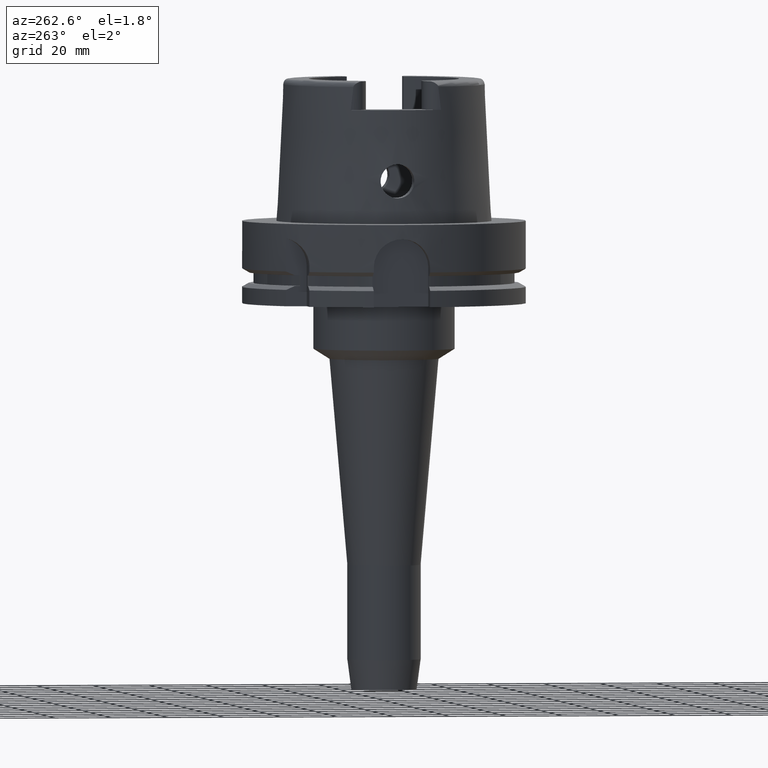
[diagram: clean part render]
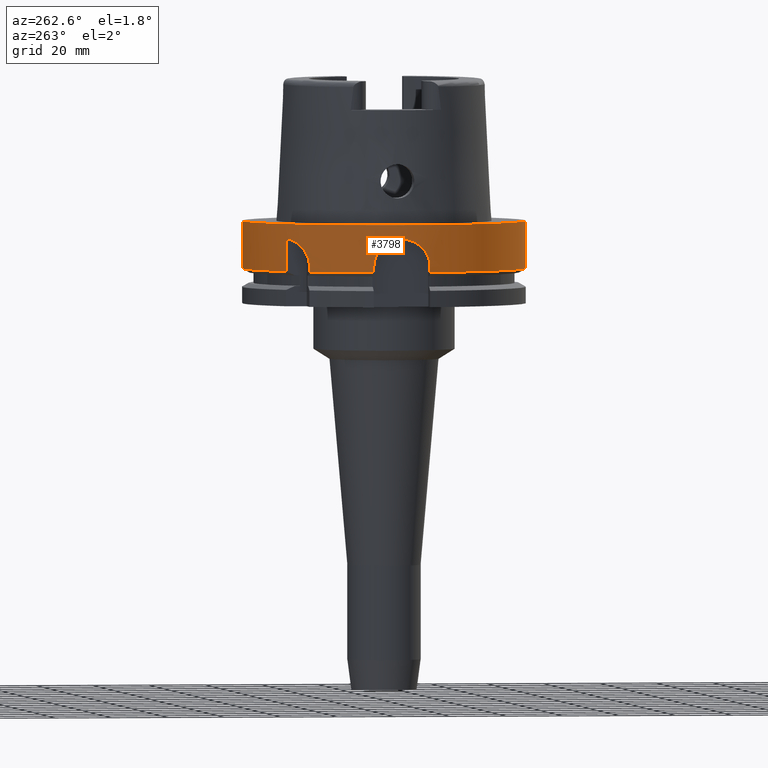
[diagram: same view with one face highlighted and labeled with its STEP entity id]
A machine part, auxiliary view. The second image highlights one B-rep face of the part: STEP entity #3798.
In plain terms, the highlighted cylindrical surface (partial cylindrical patch) has radius 50 mm, axis along (0, 0, 1).
Its self-contained STEP definition (entity closure, byte-faithful):
#1321=CARTESIAN_POINT('',(-3.150000355959E1,3.882975374305E1,
-1.675239179145E1));
#1506=CARTESIAN_POINT('',(-3.882975730068E1,3.149999917413E1,
-1.675240773890E1));
#1530=DIRECTION('',(-3.028823767049E-7,-2.457085509676E-7,-9.999999999999E-1));
#1531=VECTOR('',#1530,1.175239179145E1);
#1532=CARTESIAN_POINT('',(-3.15E1,3.882975663071E1,-5.000000000003E0));
#1533=LINE('',#1532,#1531);
#1537=DIRECTION('',(0.E0,2.969006079282E-14,-1.E0));
#1538=VECTOR('',#1537,1.675240473581E1);
#1539=CARTESIAN_POINT('',(0.E0,-5.E1,0.E0));
#1540=LINE('',#1539,#1538);
#1544=DIRECTION('',(3.933032361779E-13,-2.534170336198E-14,1.E0));
#1545=VECTOR('',#1544,1.752404735809E0);
#1546=CARTESIAN_POINT('',(-4.898979485566E1,-1.E1,-1.675240473581E1));
#1547=LINE('',#1546,#1545);
#1551=DIRECTION('',(-4.014125812538E-13,-2.635537149646E-14,-1.E0));
#1552=VECTOR('',#1551,1.752404735809E0);
#1553=CARTESIAN_POINT('',(-4.898979485566E1,1.E1,-1.5E1));
#1554=LINE('',#1553,#1552);
#1558=DIRECTION('',(3.166955095345E-7,3.903884141555E-7,9.999999999999E-1));
#1559=VECTOR('',#1558,2.115509879686E0);
#1560=CARTESIAN_POINT('',(-3.882975730068E1,3.149999917413E1,
-1.675240773890E1));
#1561=LINE('',#1560,#1559);
#1565=CARTESIAN_POINT('',(-3.882975663071E1,3.15E1,-1.463689785921E1));
#1566=CARTESIAN_POINT('',(-3.882975663071E1,3.15E1,-1.430494203698E1));
#1567=CARTESIAN_POINT('',(-3.880306412820E1,3.153294538066E1,
-1.364359485381E1));
#1568=CARTESIAN_POINT('',(-3.868263107947E1,3.168082897827E1,
-1.265749929515E1));
#1569=CARTESIAN_POINT('',(-3.847871746533E1,3.192862218983E1,
-1.168263312617E1));
#1570=CARTESIAN_POINT('',(-3.818855617738E1,3.227574382322E1,
-1.073045114631E1));
#1571=CARTESIAN_POINT('',(-3.780497391116E1,3.272503593917E1,
-9.803909292814E0));
#1572=CARTESIAN_POINT('',(-3.732221476838E1,3.327564544412E1,
-8.915695620927E0));
#1573=CARTESIAN_POINT('',(-3.672712704925E1,3.393268326905E1,
-8.069829316823E0));
#1574=CARTESIAN_POINT('',(-3.601008097667E1,3.469435363096E1,
-7.282043895688E0));
#1575=CARTESIAN_POINT('',(-3.515384342932E1,3.556374749500E1,
-6.562284648330E0));
#1576=CARTESIAN_POINT('',(-3.413836408810E1,3.654213793436E1,
-5.925495247568E0));
#1577=CARTESIAN_POINT('',(-3.294305687959E1,3.762638310863E1,
-5.390156036175E0));
#1578=CARTESIAN_POINT('',(-3.200582486649E1,3.841941454575E1,
-5.113699786751E0));
#1579=CARTESIAN_POINT('',(-3.15E1,3.882975663071E1,-5.000000000003E0));
#1602=CARTESIAN_POINT('',(0.E0,0.E0,-1.675240473581E1));
#1603=DIRECTION('',(0.E0,0.E0,1.E0));
#1604=DIRECTION('',(0.E0,1.E0,0.E0));
#1605=AXIS2_PLACEMENT_3D('',#1602,#1603,#1604);
#1759=DIRECTION('',(0.E0,-2.969006079282E-14,-1.E0));
#1760=VECTOR('',#1759,1.675240473581E1);
#1761=CARTESIAN_POINT('',(0.E0,5.E1,0.E0));
#1762=LINE('',#1761,#1760);
#1833=CARTESIAN_POINT('',(0.E0,0.E0,-1.675240473581E1));
#1834=DIRECTION('',(0.E0,0.E0,1.E0));
#1835=DIRECTION('',(-9.797958971133E-1,-2.E-1,0.E0));
#1836=AXIS2_PLACEMENT_3D('',#1833,#1834,#1835);
#1987=CARTESIAN_POINT('',(0.E0,0.E0,0.E0));
#1988=DIRECTION('',(0.E0,0.E0,-1.E0));
#1989=DIRECTION('',(0.E0,-1.E0,0.E0));
#1990=AXIS2_PLACEMENT_3D('',#1987,#1988,#1989);
#2019=CARTESIAN_POINT('',(-4.898979485566E1,1.E1,-1.5E1));
#2020=CARTESIAN_POINT('',(-4.898979485566E1,1.E1,-1.426108284637E1));
#2021=CARTESIAN_POINT('',(-4.902380456868E1,9.835572764977E0,
-1.277773658279E1));
#2022=CARTESIAN_POINT('',(-4.916882651731E1,9.096391268500E0,
-1.064602814331E1));
#2023=CARTESIAN_POINT('',(-4.938004788442E1,7.892535509706E0,
-8.720775268654E0));
#2024=CARTESIAN_POINT('',(-4.961473114028E1,6.281191298759E0,
-7.108976366623E0));
#2025=CARTESIAN_POINT('',(-4.982397815719E1,4.355984042858E0,
-5.904661559561E0));
#2026=CARTESIAN_POINT('',(-4.996651881395E1,2.226272320059E0,
-5.165423083157E0));
#2027=CARTESIAN_POINT('',(-5.001677317055E1,-1.483085560210E-3,
-4.917124793461E0));
#2028=CARTESIAN_POINT('',(-4.996638839141E1,-2.229127825654E0,
-5.166078386550E0));
#2029=CARTESIAN_POINT('',(-4.982374943043E1,-4.358568822511E0,
-5.905888936282E0));
#2030=CARTESIAN_POINT('',(-4.961443237380E1,-6.283537316648E0,
-7.110862338249E0));
#2031=CARTESIAN_POINT('',(-4.937976412220E1,-7.894256710523E0,
-8.722907499253E0));
#2032=CARTESIAN_POINT('',(-4.916857099890E1,-9.097830034699E0,
-1.064902423136E1));
#2033=CARTESIAN_POINT('',(-4.902369954882E1,-9.835972787093E0,
-1.278007155795E1));
#2034=CARTESIAN_POINT('',(-4.898979485566E1,-1.E1,-1.426200631868E1));
#2035=CARTESIAN_POINT('',(-4.898979485566E1,-1.E1,-1.5E1));
#2054=CARTESIAN_POINT('',(0.E0,0.E0,-1.675240473581E1));
#2055=DIRECTION('',(0.E0,0.E0,1.E0));
#2056=DIRECTION('',(-7.765951326142E-1,6.3E-1,0.E0));
#2057=AXIS2_PLACEMENT_3D('',#2054,#2055,#2056);
#2062=CARTESIAN_POINT('',(-4.898979485566E1,1.E1,-1.675240473581E1));
#2464=VERTEX_POINT('',#1321);
#2465=CARTESIAN_POINT('',(-3.15E1,3.882975663071E1,-5.000000000003E0));
#2466=VERTEX_POINT('',#2465);
#2485=CARTESIAN_POINT('',(-4.898979485566E1,-1.E1,-1.5E1));
#2486=VERTEX_POINT('',#2485);
#2487=CARTESIAN_POINT('',(-4.898979485566E1,-1.E1,-1.675240473581E1));
#2488=VERTEX_POINT('',#2487);
#2507=VERTEX_POINT('',#2062);
#2508=CARTESIAN_POINT('',(-4.898979485566E1,1.E1,-1.5E1));
#2509=VERTEX_POINT('',#2508);
#2548=CARTESIAN_POINT('',(0.E0,-5.E1,-1.675240473581E1));
#2549=VERTEX_POINT('',#2548);
#2553=CARTESIAN_POINT('',(0.E0,5.E1,-1.675240473581E1));
#2554=VERTEX_POINT('',#2553);
#2555=VERTEX_POINT('',#1506);
#2556=CARTESIAN_POINT('',(0.E0,5.E1,0.E0));
#2557=VERTEX_POINT('',#2556);
#2558=CARTESIAN_POINT('',(0.E0,-5.E1,0.E0));
#2559=VERTEX_POINT('',#2558);
#2560=CARTESIAN_POINT('',(-3.882975663071E1,3.15E1,-1.463689785921E1));
#2561=VERTEX_POINT('',#2560);
#3772=CARTESIAN_POINT('',(0.E0,0.E0,-1.7575E2));
#3773=DIRECTION('',(0.E0,0.E0,1.E0));
#3774=DIRECTION('',(0.E0,1.E0,0.E0));
#3775=AXIS2_PLACEMENT_3D('',#3772,#3773,#3774);
#3776=CYLINDRICAL_SURFACE('',#3775,5.E1);
#3777=ORIENTED_EDGE('',*,*,#3540,.T.);
#3779=ORIENTED_EDGE('',*,*,#3778,.F.);
#3781=ORIENTED_EDGE('',*,*,#3780,.F.);
#3783=ORIENTED_EDGE('',*,*,#3782,.F.);
#3785=ORIENTED_EDGE('',*,*,#3784,.T.);
#3787=ORIENTED_EDGE('',*,*,#3786,.F.);
#3788=ORIENTED_EDGE('',*,*,#3663,.T.);
#3790=ORIENTED_EDGE('',*,*,#3789,.F.);
#3791=ORIENTED_EDGE('',*,*,#3713,.T.);
#3793=ORIENTED_EDGE('',*,*,#3792,.F.);
#3794=ORIENTED_EDGE('',*,*,#3744,.T.);
#3795=ORIENTED_EDGE('',*,*,#3765,.T.);
#3796=EDGE_LOOP('',(#3777,#3779,#3781,#3783,#3785,#3787,#3788,#3790,#3791,#3793,
#3794,#3795));
#3797=FACE_OUTER_BOUND('',#3796,.F.);
#1580=B_SPLINE_CURVE_WITH_KNOTS('',3,(#1565,#1566,#1567,#1568,#1569,#1570,#1571,
#1572,#1573,#1574,#1575,#1576,#1577,#1578,#1579),.UNSPECIFIED.,.F.,.F.,(4,1,1,1,
1,1,1,1,1,1,1,1,4),(0.E0,8.333333333333E-2,1.666666666667E-1,2.5E-1,
3.333333333333E-1,4.166666666667E-1,5.E-1,5.833333333333E-1,6.666666666667E-1,
7.5E-1,8.333333333333E-1,9.166666666667E-1,1.E0),.UNSPECIFIED.);
#1606=CIRCLE('',#1605,5.E1);
#1837=CIRCLE('',#1836,5.E1);
#1991=CIRCLE('',#1990,5.E1);
#2036=B_SPLINE_CURVE_WITH_KNOTS('',3,(#2019,#2020,#2021,#2022,#2023,#2024,#2025,
#2026,#2027,#2028,#2029,#2030,#2031,#2032,#2033,#2034,#2035),.UNSPECIFIED.,.F.,
.F.,(4,1,1,1,1,1,1,1,1,1,1,1,1,1,4),(0.E0,7.142857142857E-2,1.428571428571E-1,
2.142857142857E-1,2.857142857143E-1,3.571428571429E-1,4.285714285714E-1,5.E-1,
5.714285714286E-1,6.428571428571E-1,7.142857142857E-1,7.857142857143E-1,
8.571428571429E-1,9.285714285714E-1,1.E0),.UNSPECIFIED.);
#2058=CIRCLE('',#2057,5.E1);
#3540=EDGE_CURVE('',#2466,#2464,#1533,.T.);
#3663=EDGE_CURVE('',#2488,#2486,#1547,.T.);
#3713=EDGE_CURVE('',#2509,#2507,#1554,.T.);
#3744=EDGE_CURVE('',#2555,#2561,#1561,.T.);
#3765=EDGE_CURVE('',#2561,#2466,#1580,.T.);
#3778=EDGE_CURVE('',#2554,#2464,#1606,.T.);
#3780=EDGE_CURVE('',#2557,#2554,#1762,.T.);
#3782=EDGE_CURVE('',#2559,#2557,#1991,.T.);
#3784=EDGE_CURVE('',#2559,#2549,#1540,.T.);
#3786=EDGE_CURVE('',#2488,#2549,#1837,.T.);
#3789=EDGE_CURVE('',#2509,#2486,#2036,.T.);
#3792=EDGE_CURVE('',#2555,#2507,#2058,.T.);
#3798=ADVANCED_FACE('',(#3797),#3776,.T.);